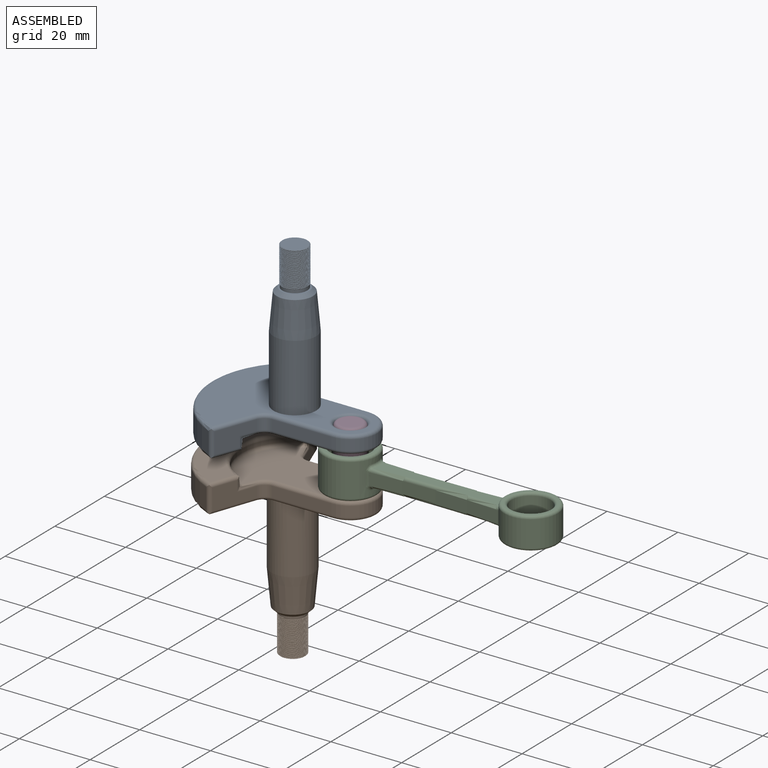
[diagram: assembled view]
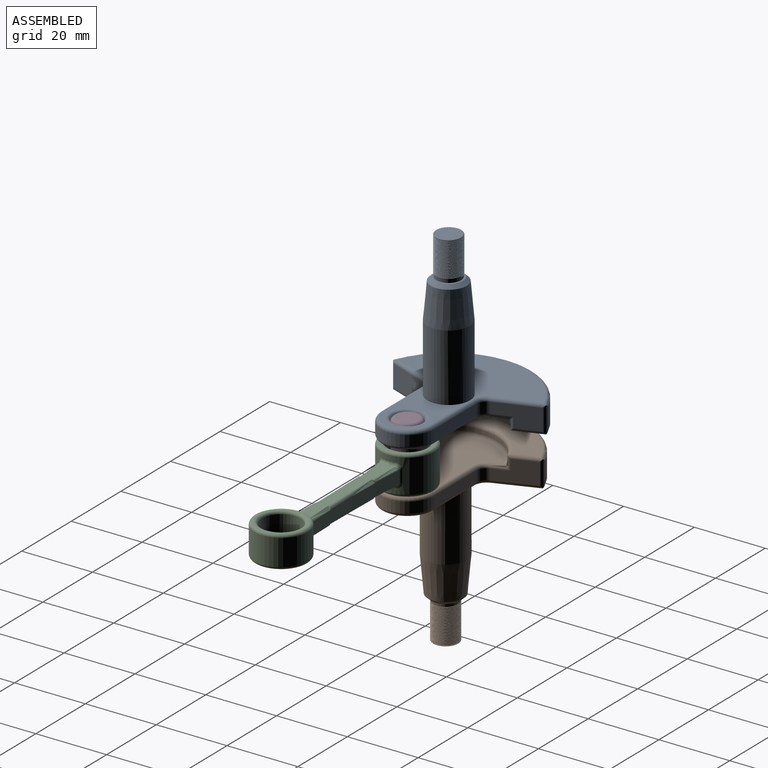
[diagram: assembled view, second angle]
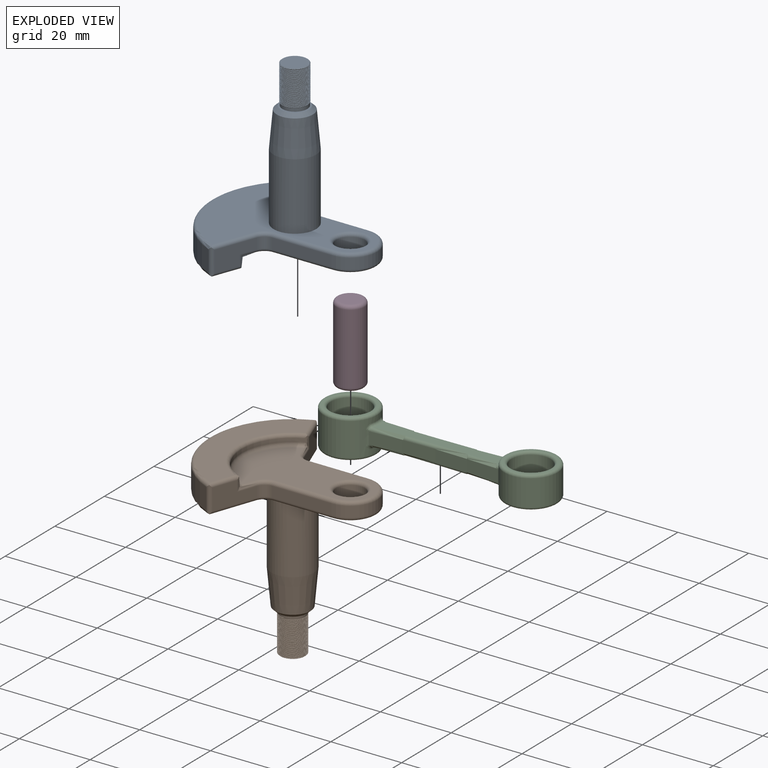
[diagram: exploded view]
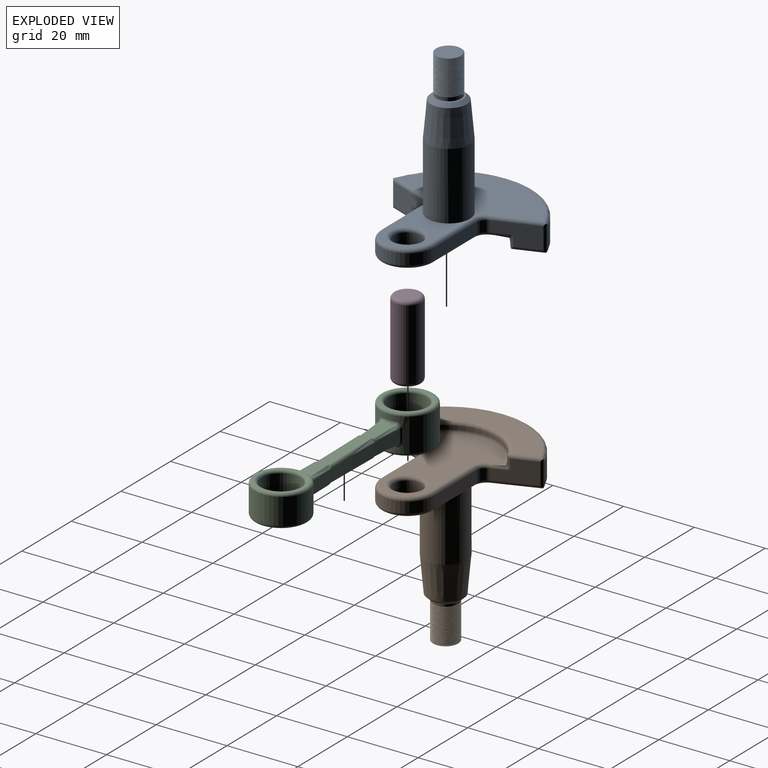
[diagram: exploded view, second angle]
ASSEMBLY  parts=4 mates=6
PART A: 84 faces, bbox 49.5x47.4x49 mm
  f0: plane 35.99x24.41mm, normal (0,0,1), area 421.2mm2, adj f70,f71,f72,f73,f74,f75,f76,f79
  f1: cylinder r=23.5mm len=43.2mm, axis (0,0,-1), area 328.7mm2, adj f54,f62,f66,f67
  f2: plane 44.99x41.36mm, normal (0,0,-1), area 681.4mm2, adj f3,f54,f55,f56,f57,f58,f59,f60
  f3: cylinder r=6mm len=19mm, axis (0,0,1), area 716.3mm2, adj f2,f4
  f4: cone r=5mm half-angle=5.2deg, axis (0,0,1), area 350mm2, adj f3,f6
  f5: plane 8x8mm, normal (0,0,-1), area 11.8mm2, adj f6,f37
  f6: cone r=4mm half-angle=47.6deg, axis (0,0,1), area 42.2mm2, adj f4,f5
  f7: cylinder r=3.5mm len=3.5mm, axis (0,0,1), area 0.2mm2, adj f8,f40,f41
  f8: cylinder r=3.5mm len=7mm, axis (0,0,1), area 1.8mm2, adj f7,f9,f39,f40
  f9: cylinder r=3.5mm len=7mm, axis (0,0,1), area 1.8mm2, adj f8,f10,f39,f40
  f10: cylinder r=3.5mm len=7mm, axis (0,0,1), area 1.8mm2, adj f9,f11,f39,f40
  f11: cylinder r=3.5mm len=7mm, axis (0,0,1), area 1.8mm2, adj f10,f12,f39,f40
  f12: cylinder r=3.5mm len=7mm, axis (0,0,1), area 1.8mm2, adj f11,f13,f39,f40
  f13: cylinder r=3.5mm len=7mm, axis (0,0,1), area 1.8mm2, adj f12,f14,f39,f40
  f14: cylinder r=3.5mm len=7mm, axis (0,0,1), area 1.8mm2, adj f13,f15,f39,f40
  f15: cylinder r=3.5mm len=7mm, axis (0,0,1), area 1.8mm2, adj f14,f16,f39,f40
  f16: cylinder r=3.5mm len=7mm, axis (0,0,1), area 1.8mm2, adj f15,f17,f39,f40
  f17: cylinder r=3.5mm len=7mm, axis (0,0,1), area 1.8mm2, adj f16,f18,f39,f40
  f18: cylinder r=3.5mm len=7mm, axis (0,0,1), area 1.8mm2, adj f17,f19,f39,f40
  f19: cylinder r=3.5mm len=7mm, axis (0,0,1), area 1.8mm2, adj f18,f20,f39,f40
  f20: cylinder r=3.5mm len=7mm, axis (0,0,1), area 1.8mm2, adj f19,f21,f39,f40
  f21: cylinder r=3.5mm len=7mm, axis (0,0,1), area 1.8mm2, adj f20,f22,f39,f40
  f22: cylinder r=3.5mm len=7mm, axis (0,0,1), area 1.8mm2, adj f21,f23,f39,f40
  f23: cylinder r=3.5mm len=7mm, axis (0,0,1), area 1.8mm2, adj f22,f24,f39,f40
  f24: cylinder r=3.5mm len=7mm, axis (0,0,1), area 1.8mm2, adj f23,f25,f39,f40
  f25: cylinder r=3.5mm len=7mm, axis (0,0,1), area 1.8mm2, adj f24,f26,f39,f40
  f26: cylinder r=3.5mm len=7mm, axis (0,0,1), area 1.8mm2, adj f25,f27,f39,f40
  f27: cylinder r=3.5mm len=7mm, axis (0,0,1), area 1.8mm2, adj f26,f28,f39,f40
  f28: cylinder r=3.5mm len=7mm, axis (0,0,1), area 1.8mm2, adj f27,f29,f39,f40
  f29: cylinder r=3.5mm len=7mm, axis (0,0,1), area 1.8mm2, adj f28,f30,f39,f40
  f30: cylinder r=3.5mm len=7mm, axis (0,0,1), area 1.8mm2, adj f29,f31,f39,f40
  f31: cylinder r=3.5mm len=7mm, axis (0,0,1), area 1.8mm2, adj f30,f32,f39,f40
  f32: cylinder r=3.5mm len=7mm, axis (0,0,1), area 1.8mm2, adj f31,f33,f39,f40
  f33: cylinder r=3.5mm len=7mm, axis (0,0,1), area 1.8mm2, adj f32,f34,f39,f40
  f34: cylinder r=3.5mm len=7mm, axis (0,0,1), area 1.8mm2, adj f33,f35,f39,f40
  f35: cylinder r=3.5mm len=7mm, axis (0,0,1), area 1.8mm2, adj f34,f36,f39,f40
  f36: cylinder r=3.5mm len=7mm, axis (0,0,1), area 1.8mm2, adj f35,f37,f39,f40
  f37: cylinder r=3.5mm len=7mm, axis (0,0,1), area 20.2mm2, adj f5,f36,f38,f39
  f38: plane 0.25x0.13mm, normal (1,0,0), area 0mm2, adj f37,f39,f40
  f39: bspline ~10.13x8.37mm, area 118.4mm2, adj f8,f9,f10,f11,f12,f13,f14,f15
  f40: bspline ~10.13x8.37mm, area 117.2mm2, adj f7,f8,f9,f10,f11,f12,f13,f14
  f41: cone r=3.5mm half-angle=45deg, axis (0,0,-1), area 2.5mm2, adj f7,f39,f40,f42
  f42: cone r=3.62mm half-angle=45deg, axis (0,0,1), area 4mm2, adj f41,f43
  f43: plane 7x7mm, normal (0,0,-1), area 38.5mm2, adj f42
  f44: plane 11.93x6mm, normal (0.94,-0.33,0), area 59mm2, adj f49,f61,f64,f66,f69,f70
  f45: plane 16.88x3mm, normal (0,-1,0), area 50.6mm2, adj f46,f49,f59,f72
  f46: cylinder r=7.5mm len=15mm, axis (0,0,-1), area 70.6mm2, adj f45,f47,f58,f73
  f47: plane 16.93x3mm, normal (0,1,0), area 50.8mm2, adj f46,f50,f57,f74
  f48: plane 11.14x6mm, normal (0.94,0.35,0), area 56.7mm2, adj f50,f55,f63,f67,f68,f76
  f49: cylinder r=3mm len=3mm, axis (0,0,-1), area 11.1mm2, adj f44,f45,f60,f71
  f50: cylinder r=3mm len=3mm, axis (0,0,1), area 10.9mm2, adj f47,f48,f56,f75
  f51: cylinder r=4mm len=8mm, axis (0,0,-1), area 75.4mm2, adj f82,f83
  f52: cylinder r=14.5mm len=26.36mm, axis (0,0,-1), area 33.1mm2, adj f65,f68,f69,f78,f79,f80
  f53: plane 41.36x16.11mm, normal (0,0,1), area 307.4mm2, adj f62,f63,f64,f65
  f54: torus R=22.5mm, axis (0,0,1), area 85.9mm2, adj f1,f2,f55,f61,f66,f67
  f55: cylinder r=1mm len=12.16mm, axis (-0.35,0.94,0), area 19.3mm2, adj f2,f48,f54,f56,f67
  f56: torus R=4mm, axis (0,0,1), area 6.4mm2, adj f2,f50,f55,f57
  f57: cylinder r=1mm len=16.93mm, axis (-1,0,0), area 26.6mm2, adj f2,f47,f56,f58
  f58: torus R=6.5mm, axis (0,0,1), area 35.2mm2, adj f2,f46,f57,f59
  f59: cylinder r=1mm len=16.88mm, axis (1,0,0), area 26.5mm2, adj f2,f45,f58,f60
  f60: torus R=4mm, axis (0,0,1), area 6.5mm2, adj f2,f49,f59,f61
  f61: cylinder r=1mm len=12.95mm, axis (0.33,0.94,0), area 20.4mm2, adj f2,f44,f54,f60,f66
  f62: torus R=22.5mm, axis (0,0,-1), area 85.9mm2, adj f1,f53,f63,f64,f66,f67
  f63: cylinder r=1mm len=8.23mm, axis (0.35,-0.94,0), area 12.1mm2, adj f48,f53,f62,f65,f67,f68
  f64: cylinder r=1mm len=8.28mm, axis (0.33,0.94,0), area 12.1mm2, adj f44,f53,f62,f65,f66,f69
  f65: torus R=15.5mm, axis (0,0,-1), area 54.3mm2, adj f52,f53,f63,f64,f68,f69
  f66: cylinder r=1mm len=7.45mm, axis (0,0,-1), area 11mm2, adj f1,f44,f54,f61,f62,f64
  f67: cylinder r=1mm len=7.43mm, axis (0,0,-1), area 10.8mm2, adj f1,f48,f54,f55,f62,f63
  f68: cylinder r=1mm len=3.69mm, axis (0,0,-1), area 3.5mm2, adj f48,f52,f63,f65,f81
  f69: cylinder r=1mm len=3.68mm, axis (0,0,-1), area 3.5mm2, adj f44,f52,f64,f65,f77
  f70: cylinder r=1mm len=5.65mm, axis (0.33,0.94,0), area 6.9mm2, adj f0,f44,f71,f77,f78
  f71: torus R=4mm, axis (0,0,1), area 6.5mm2, adj f0,f49,f70,f72
  f72: cylinder r=1mm len=16.88mm, axis (1,0,0), area 26.5mm2, adj f0,f45,f71,f73
  f73: torus R=6.5mm, axis (0,0,1), area 35.2mm2, adj f0,f46,f72,f74
  f74: cylinder r=1mm len=16.93mm, axis (-1,0,0), area 26.6mm2, adj f0,f47,f73,f75
  f75: torus R=4mm, axis (0,0,1), area 6.4mm2, adj f0,f50,f74,f76
  f76: cylinder r=1mm len=4.93mm, axis (-0.35,0.94,0), area 5.7mm2, adj f0,f48,f75,f80,f81
  f77: bspline ~2.23x2mm, area 1mm2, adj f69,f70,f78
  f78: bspline ~1.19x1.03mm, area 0.2mm2, adj f52,f70,f77,f79
  f79: torus R=13.5mm, axis (0,0,1), area 50.1mm2, adj f0,f52,f78,f80
  f80: bspline ~1.18x1.03mm, area 0.1mm2, adj f52,f76,f79,f81
  f81: bspline ~2.24x2mm, area 1mm2, adj f68,f76,f80
  f82: torus R=5mm, axis (0,0,1), area 43.1mm2, adj f0,f51
  f83: torus R=5mm, axis (0,0,1), area 43.1mm2, adj f2,f51
PART B: same geometry as A
PART C: 40 faces, bbox 67.2x16.2x11 mm
  f0: cylinder r=7.5mm len=15mm, axis (0,0,-1), area 399.5mm2, adj f13,f15,f16,f21,f22,f25,f26,f29
  f1: cylinder r=7.5mm len=15mm, axis (0,0,-1), area 305.2mm2, adj f14,f18,f19,f23,f24,f27,f28,f30
  f2: cylinder r=5.5mm len=11mm, axis (0,0,-1), area 255.7mm2, adj f32,f38
  f3: cylinder r=230mm len=36.27mm, axis (0,0,-1), area 123.4mm2, adj f12,f15,f19,f20
  f4: cylinder r=230mm len=36.27mm, axis (0,0,-1), area 123.4mm2, adj f17,f26,f27,f31
  f5: plane 13.4x13.4mm, normal (0,0,-1), area 16.3mm2, adj f37,f38
  f6: cylinder r=5.5mm len=11mm, axis (0,0,-1), area 324.8mm2, adj f34,f36
  f7: plane 34.91x4.09mm, normal (0,0,-1), area 110.8mm2, adj f12,f16,f17,f18
  f8: plane 34.91x4.09mm, normal (0,0,1), area 110.8mm2, adj f20,f25,f28,f31
  f9: plane 13.4x13.4mm, normal (0,0,1), area 16.3mm2, adj f32,f39
  f10: plane 13.4x13.4mm, normal (0,0,1), area 16.3mm2, adj f33,f34
  f11: plane 13.4x13.4mm, normal (0,0,-1), area 16.3mm2, adj f35,f36
  f12: torus R=230.8mm, axis (0,0,-1), area 44.9mm2, adj f3,f7,f13,f14
  f13: bspline ~1.83x1.72mm, area 1.9mm2, adj f0,f12,f15,f16
  f14: bspline ~1.92x1.65mm, area 1.9mm2, adj f1,f12,f18,f19
  f15: cylinder r=0.8mm len=3.4mm, axis (0,0,1), area 2.8mm2, adj f0,f3,f13,f21
  f16: torus R=8.3mm, axis (0,0,-1), area 4.9mm2, adj f0,f7,f13,f22
  f17: torus R=230.8mm, axis (0,0,-1), area 44.9mm2, adj f4,f7,f22,f23
  f18: torus R=8.3mm, axis (0,0,-1), area 4.9mm2, adj f1,f7,f14,f23
  f19: cylinder r=0.8mm len=3.4mm, axis (0,0,1), area 2.8mm2, adj f1,f3,f14,f24
  f20: torus R=230.8mm, axis (0,0,1), area 44.9mm2, adj f3,f8,f21,f24
  f21: bspline ~1.92x1.65mm, area 1.9mm2, adj f0,f15,f20,f25
  f22: bspline ~1.92x1.65mm, area 1.9mm2, adj f0,f16,f17,f26
  f23: bspline ~1.83x1.72mm, area 1.9mm2, adj f1,f17,f18,f27
  f24: bspline ~1.83x1.72mm, area 1.9mm2, adj f1,f19,f20,f28
  f25: torus R=8.3mm, axis (0,0,1), area 4.9mm2, adj f0,f8,f21,f29
  f26: cylinder r=0.8mm len=3.4mm, axis (0,0,1), area 2.8mm2, adj f0,f4,f22,f29
  f27: cylinder r=0.8mm len=3.4mm, axis (0,0,1), area 2.8mm2, adj f1,f4,f23,f30
  f28: torus R=8.3mm, axis (0,0,1), area 4.9mm2, adj f1,f8,f24,f30
  f29: bspline ~1.83x1.72mm, area 1.9mm2, adj f0,f25,f26,f31
  f30: bspline ~1.92x1.65mm, area 1.9mm2, adj f1,f27,f28,f31
  f31: torus R=230.8mm, axis (0,0,1), area 44.9mm2, adj f4,f8,f29,f30
  f32: torus R=6.3mm, axis (0,0,1), area 45.7mm2, adj f2,f9
  f33: torus R=6.7mm, axis (0,0,-1), area 56.9mm2, adj f0,f10
  f34: torus R=6.3mm, axis (0,0,-1), area 45.7mm2, adj f6,f10
  f35: torus R=6.7mm, axis (0,0,1), area 56.9mm2, adj f0,f11
  f36: torus R=6.3mm, axis (0,0,1), area 45.7mm2, adj f6,f11
  f37: torus R=6.7mm, axis (0,0,1), area 56.9mm2, adj f1,f5
  f38: torus R=6.3mm, axis (0,0,1), area 45.7mm2, adj f2,f5
  f39: torus R=6.7mm, axis (0,0,1), area 56.9mm2, adj f1,f9
PART D: 5 faces, bbox 8.7x8.7x22 mm
  f0: cylinder r=4mm len=20mm, axis (0,0,-1), area 502.7mm2, adj f3,f4
  f1: plane 6x6mm, normal (0,0,1), area 28.3mm2, adj f4
  f2: plane 6x6mm, normal (0,0,-1), area 28.3mm2, adj f3
  f3: torus R=3mm, axis (0,0,1), area 35.9mm2, adj f0,f2
  f4: torus R=3mm, axis (0,0,1), area 35.9mm2, adj f0,f1
PLACE A rot(axis=(1,0,0),180deg) t=(-12.5,11.89,21.26)mm
PLACE B t=(-12.5,11.02,-0.74)mm
PLACE C t=(3.5,11.45,5.26)mm
PLACE D rot(axis=(1,0,0),180deg) t=(3.5,11.45,21.26)mm
MATE cylindrical D.f0 <-> B.f51  axis (0,0,1) through (3.5,11.45,10.26)mm
MATE planar A.f2 <-> D.f0  axis (0,0,1) through (-4.96,4.94,21.26)mm
MATE planar B.f2 <-> D.f0  axis (0,0,-1) through (-4.94,4.94,-0.74)mm
MATE planar B.f2 <-> B.f2  axis (0,0,-1) through (-4.96,17.96,-0.74)mm
MATE planar C.f0 <-> B.f0  axis (0,0,-1) through (3.5,11.45,4.26)mm
MATE cylindrical A.f51 <-> D.f0  axis (0,0,-1) through (3.5,11.45,17.26)mm
